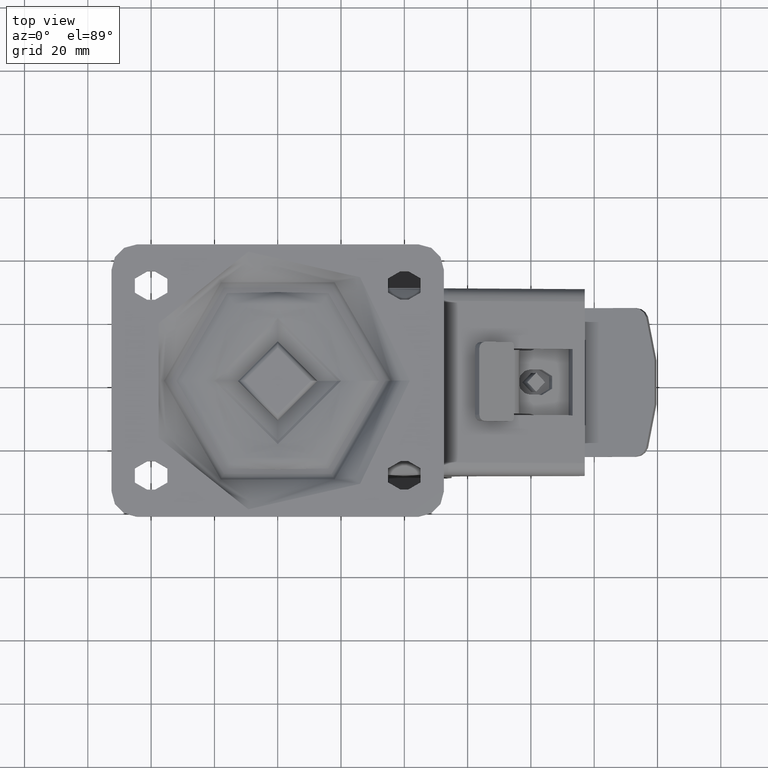
[diagram: clean part render]
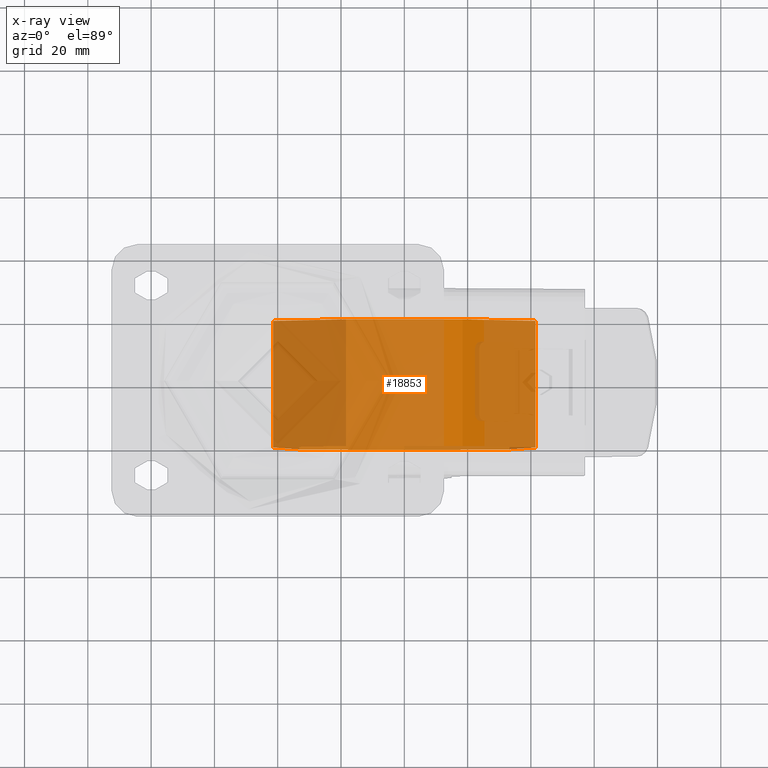
[diagram: x-ray — body ghosted, one internal face saturated and labeled with its STEP entity id]
A machine part, top view, then the same camera in x-ray: the body is ghosted and one INTERNAL B-rep face — a face not visible from any outside direction — is saturated and labeled: STEP entity #18853.
In plain terms, the highlighted cylindrical surface (bore or boss wall) has radius 42.5 mm, axis along (0, 1, 0).
Its self-contained STEP definition (entity closure, byte-faithful):
#2504=FACE_OUTER_BOUND('',#3679,.T.);
#3679=EDGE_LOOP('',(#14728,#14729,#14730,#14731));
#5243=LINE('',#29987,#6532);
#6532=VECTOR('',#23813,42.5);
#7419=CIRCLE('',#20583,42.5);
#7420=CIRCLE('',#20584,42.5);
#8634=VERTEX_POINT('',#29984);
#8635=VERTEX_POINT('',#29986);
#10822=EDGE_CURVE('',#8634,#8634,#7419,.T.);
#10823=EDGE_CURVE('',#8634,#8635,#5243,.T.);
#10824=EDGE_CURVE('',#8635,#8635,#7420,.T.);
#14728=ORIENTED_EDGE('',*,*,#10822,.F.);
#14729=ORIENTED_EDGE('',*,*,#10823,.T.);
#14730=ORIENTED_EDGE('',*,*,#10824,.T.);
#14731=ORIENTED_EDGE('',*,*,#10823,.F.);
#18333=CYLINDRICAL_SURFACE('',#20582,42.5);
#18853=ADVANCED_FACE('',(#2504),#18333,.T.);
#20582=AXIS2_PLACEMENT_3D('',#29983,#23809,#23810);
#20583=AXIS2_PLACEMENT_3D('',#29985,#23811,#23812);
#20584=AXIS2_PLACEMENT_3D('',#29988,#23814,#23815);
#23809=DIRECTION('center_axis',(0.,1.,0.));
#23810=DIRECTION('ref_axis',(0.,0.,1.));
#23811=DIRECTION('center_axis',(0.,1.,0.));
#23812=DIRECTION('ref_axis',(0.,0.,1.));
#23813=DIRECTION('',(0.,-1.,0.));
#23814=DIRECTION('center_axis',(0.,1.,0.));
#23815=DIRECTION('ref_axis',(0.,0.,1.));
#29983=CARTESIAN_POINT('Origin',(0.,6.93889390390723E-15,0.));
#29984=CARTESIAN_POINT('',(5.20474889637625E-15,20.,-42.5));
#29985=CARTESIAN_POINT('Origin',(0.,20.,0.));
#29986=CARTESIAN_POINT('',(5.20474889637625E-15,-20.,-42.5));
#29987=CARTESIAN_POINT('',(-5.20474889637625E-15,6.93889390390723E-15,-42.5));
#29988=CARTESIAN_POINT('Origin',(0.,-20.,0.));